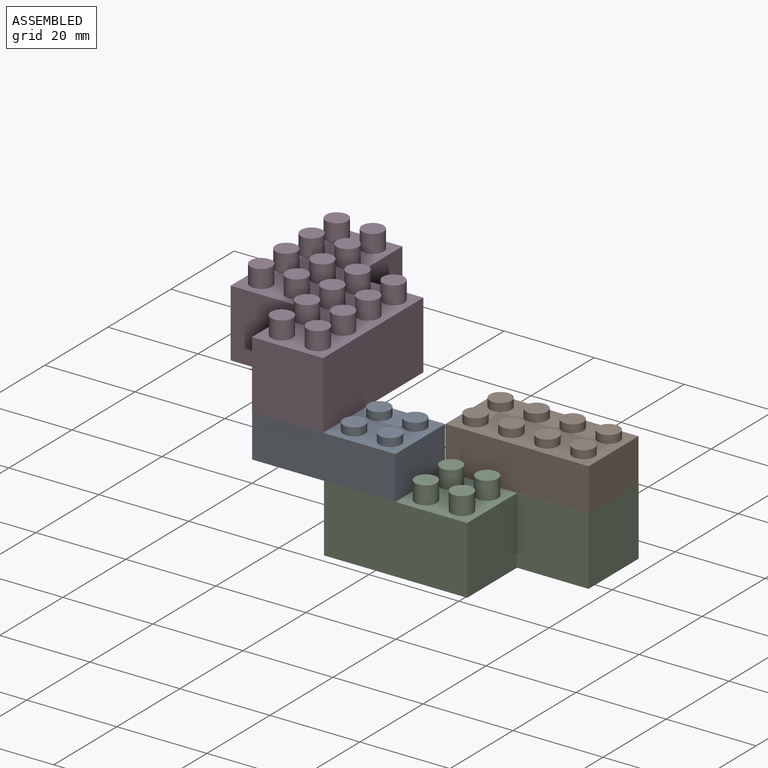
[diagram: assembled view]
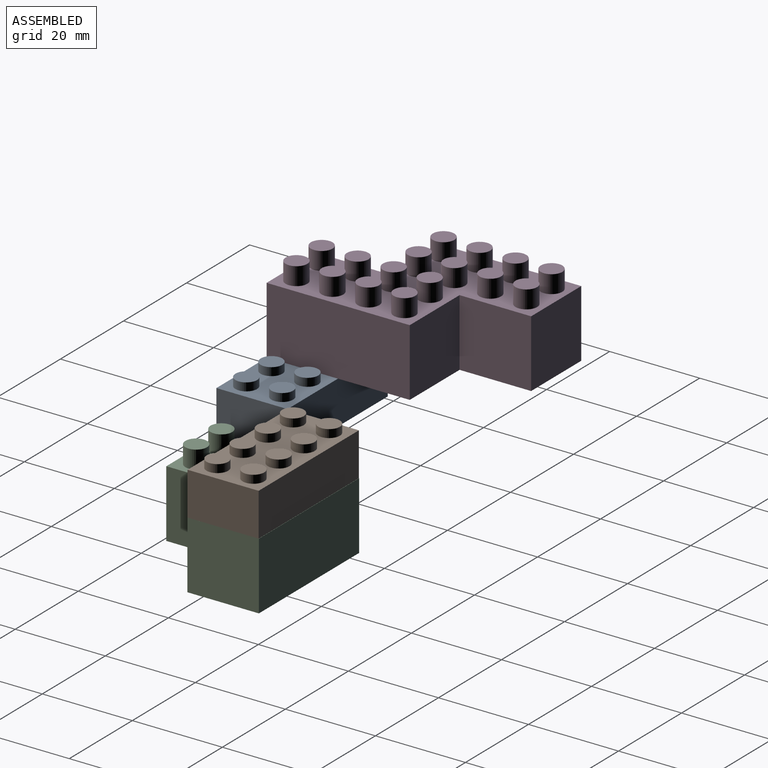
[diagram: assembled view, second angle]
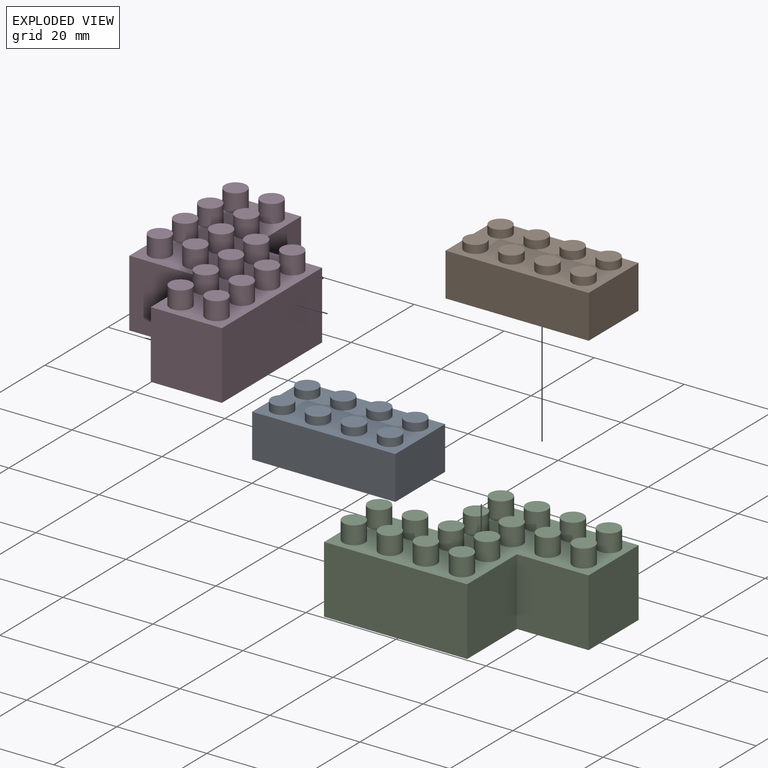
[diagram: exploded view]
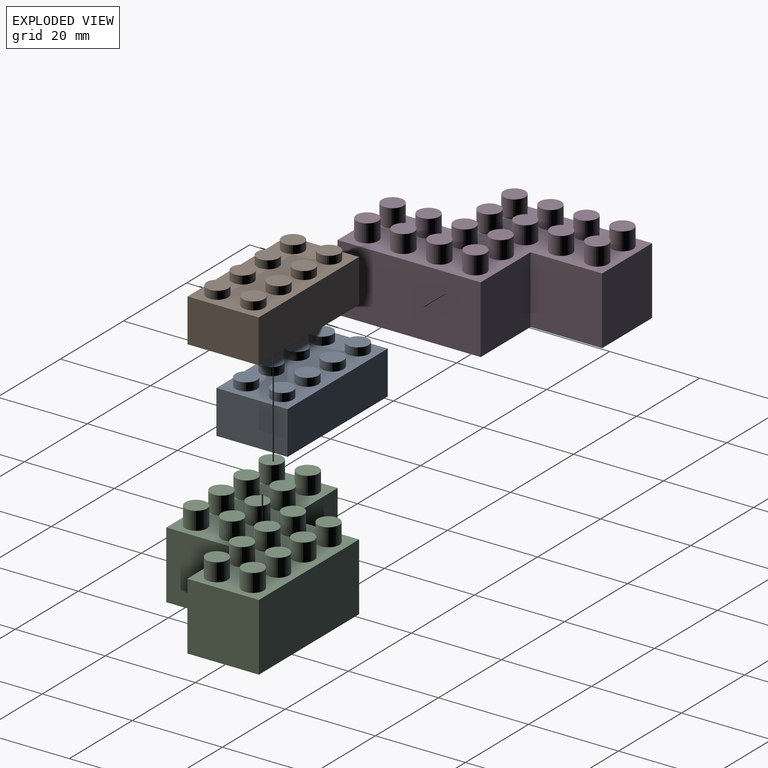
[diagram: exploded view, second angle]
ASSEMBLY  parts=4 mates=3
PART A: 87 faces, bbox 31.8x15.8x11.4 mm
  f0: plane 31.8x15.8mm, normal (0,0,-1), area 110.6mm2, adj f1,f2,f3,f4,f22,f23,f24,f25
  f1: plane 31.8x9.6mm, normal (0,1,0), area 305.3mm2, adj f0,f2,f4,f5
  f2: plane 15.8x9.6mm, normal (-1,0,0), area 151.7mm2, adj f0,f1,f3,f5
  f3: plane 31.8x9.6mm, normal (0,-1,0), area 305.3mm2, adj f0,f2,f4,f5
  f4: plane 15.8x9.6mm, normal (1,0,0), area 151.7mm2, adj f0,f1,f3,f5
  f5: plane 31.8x15.8mm, normal (0,0,1), area 357.7mm2, adj f1,f2,f3,f4,f6,f8,f10,f12
  f6: cylinder r=2.4mm len=4.8mm, axis (0,0,-1), area 27.1mm2, adj f5,f7
  f7: plane 4.8x4.8mm, normal (0,0,1), area 18.1mm2, adj f6
  f8: cylinder r=2.4mm len=4.8mm, axis (0,0,-1), area 27.1mm2, adj f5,f9
  f9: plane 4.8x4.8mm, normal (0,0,1), area 18.1mm2, adj f8
  f10: cylinder r=2.4mm len=4.8mm, axis (0,0,-1), area 27.1mm2, adj f5,f11
  f11: plane 4.8x4.8mm, normal (0,0,1), area 18.1mm2, adj f10
  f12: cylinder r=2.4mm len=4.8mm, axis (0,0,-1), area 27.1mm2, adj f5,f13
  f13: plane 4.8x4.8mm, normal (0,0,1), area 18.1mm2, adj f12
  f14: cylinder r=2.4mm len=4.8mm, axis (0,0,-1), area 27.1mm2, adj f5,f15
  f15: plane 4.8x4.8mm, normal (0,0,1), area 18.1mm2, adj f14
  f16: cylinder r=2.4mm len=4.8mm, axis (0,0,-1), area 27.1mm2, adj f5,f17
  f17: plane 4.8x4.8mm, normal (0,0,1), area 18.1mm2, adj f16
  f18: cylinder r=2.4mm len=4.8mm, axis (0,0,-1), area 27.1mm2, adj f5,f19
  f19: plane 4.8x4.8mm, normal (0,0,1), area 18.1mm2, adj f18
  f20: cylinder r=2.4mm len=4.8mm, axis (0,0,-1), area 27.1mm2, adj f5,f21
  f21: plane 4.8x4.8mm, normal (0,0,1), area 18.1mm2, adj f20
  f22: plane 8.2x0.3mm, normal (0,-1,0), area 2.5mm2, adj f0,f23,f75,f77
  f23: plane 8.2x2.4mm, normal (-1,0,0), area 19.7mm2, adj f0,f22,f24,f77
  f24: plane 8.2x2.4mm, normal (0,1,0), area 19.7mm2, adj f0,f23,f25,f77
  f25: plane 8.2x0.3mm, normal (1,0,0), area 2.5mm2, adj f0,f24,f26,f77
  f26: plane 8.2x0.6mm, normal (0,1,0), area 4.9mm2, adj f0,f25,f27,f77
  f27: plane 8.2x0.3mm, normal (-1,0,0), area 2.5mm2, adj f0,f26,f28,f77
  f28: plane 8.2x7.4mm, normal (0,1,0), area 60.7mm2, adj f0,f27,f29,f77
  f29: plane 8.2x0.3mm, normal (1,0,0), area 2.5mm2, adj f0,f28,f30,f77
  f30: plane 8.2x0.6mm, normal (0,1,0), area 4.9mm2, adj f0,f29,f31,f77
  f31: plane 8.2x0.3mm, normal (-1,0,0), area 2.5mm2, adj f0,f30,f32,f77
  f32: plane 8.2x7.4mm, normal (0,1,0), area 60.7mm2, adj f0,f31,f33,f77
  f33: plane 8.2x0.3mm, normal (1,0,0), area 2.5mm2, adj f0,f32,f34,f77
  f34: plane 8.2x0.6mm, normal (0,1,0), area 4.9mm2, adj f0,f33,f35,f77
  f35: plane 8.2x0.3mm, normal (-1,0,0), area 2.5mm2, adj f0,f34,f36,f77
  f36: plane 8.2x7.4mm, normal (0,1,0), area 60.7mm2, adj f0,f35,f37,f77
  f37: plane 8.2x0.3mm, normal (1,0,0), area 2.5mm2, adj f0,f36,f38,f77
  f38: plane 8.2x0.6mm, normal (0,1,0), area 4.9mm2, adj f0,f37,f39,f77
  f39: plane 8.2x0.3mm, normal (-1,0,0), area 2.5mm2, adj f0,f38,f40,f77
  f40: plane 8.2x2.4mm, normal (0,1,0), area 19.7mm2, adj f0,f39,f41,f77
  f41: plane 8.2x2.4mm, normal (1,0,0), area 19.7mm2, adj f0,f40,f42,f77
  f42: plane 8.2x0.3mm, normal (0,-1,0), area 2.5mm2, adj f0,f41,f43,f77
  f43: plane 8.2x0.6mm, normal (1,0,0), area 4.9mm2, adj f0,f42,f44,f77
  f44: plane 8.2x0.3mm, normal (0,1,0), area 2.5mm2, adj f0,f43,f45,f77
  f45: plane 8.2x7.4mm, normal (1,0,0), area 60.7mm2, adj f0,f44,f46,f77
  f46: plane 8.2x0.3mm, normal (0,-1,0), area 2.5mm2, adj f0,f45,f47,f77
  f47: plane 8.2x0.6mm, normal (1,0,0), area 4.9mm2, adj f0,f46,f48,f77
  f48: plane 8.2x0.3mm, normal (0,1,0), area 2.5mm2, adj f0,f47,f49,f77
  f49: plane 8.2x2.4mm, normal (1,0,0), area 19.7mm2, adj f0,f48,f50,f77
  f50: plane 8.2x2.4mm, normal (0,-1,0), area 19.7mm2, adj f0,f49,f51,f77
  f51: plane 8.2x0.3mm, normal (-1,0,0), area 2.5mm2, adj f0,f50,f52,f77
  f52: plane 8.2x0.6mm, normal (0,-1,0), area 4.9mm2, adj f0,f51,f53,f77
  f53: plane 8.2x0.3mm, normal (1,0,0), area 2.5mm2, adj f0,f52,f54,f77
  f54: plane 8.2x7.4mm, normal (0,-1,0), area 60.7mm2, adj f0,f53,f55,f77
  f55: plane 8.2x0.3mm, normal (-1,0,0), area 2.5mm2, adj f0,f54,f56,f77
  f56: plane 8.2x0.6mm, normal (0,-1,0), area 4.9mm2, adj f0,f55,f57,f77
  f57: plane 8.2x0.3mm, normal (1,0,0), area 2.5mm2, adj f0,f56,f58,f77
  f58: plane 8.2x7.4mm, normal (0,-1,0), area 60.7mm2, adj f0,f57,f59,f77
  f59: plane 8.2x0.3mm, normal (-1,0,0), area 2.5mm2, adj f0,f58,f60,f77
  f60: plane 8.2x0.6mm, normal (0,-1,0), area 4.9mm2, adj f0,f59,f61,f77
  f61: plane 8.2x0.3mm, normal (1,0,0), area 2.5mm2, adj f0,f60,f62,f77
  f62: plane 8.2x7.4mm, normal (0,-1,0), area 60.7mm2, adj f0,f61,f63,f77
  f63: plane 8.2x0.3mm, normal (-1,0,0), area 2.5mm2, adj f0,f62,f64,f77
  f64: plane 8.2x0.6mm, normal (0,-1,0), area 4.9mm2, adj f0,f63,f65,f77
  f65: plane 8.2x0.3mm, normal (1,0,0), area 2.5mm2, adj f0,f64,f66,f77
  f66: plane 8.2x2.4mm, normal (0,-1,0), area 19.7mm2, adj f0,f65,f67,f77
  f67: plane 8.2x2.4mm, normal (-1,0,0), area 19.7mm2, adj f0,f66,f68,f77
  f68: plane 8.2x0.3mm, normal (0,1,0), area 2.5mm2, adj f0,f67,f69,f77
  f69: plane 8.2x0.6mm, normal (-1,0,0), area 4.9mm2, adj f0,f68,f70,f77
  f70: plane 8.2x0.3mm, normal (0,-1,0), area 2.5mm2, adj f0,f69,f71,f77
  f71: plane 8.2x7.4mm, normal (-1,0,0), area 60.7mm2, adj f0,f70,f72,f77
  f72: plane 8.2x0.3mm, normal (0,1,0), area 2.5mm2, adj f0,f71,f75,f77
  f73: cylinder r=3.25mm len=8.2mm, axis (0,0,-1), area 167.4mm2, adj f77,f79
  f74: cylinder r=3.25mm len=8.2mm, axis (0,0,-1), area 167.4mm2, adj f77,f78
  f75: plane 8.2x0.6mm, normal (-1,0,0), area 4.9mm2, adj f0,f22,f72,f77
  f76: cylinder r=3.25mm len=8.2mm, axis (0,0,-1), area 167.4mm2, adj f77,f84
  f77: plane 29.4x13.4mm, normal (0,0,-1), area 292.3mm2, adj f22,f23,f24,f25,f26,f27,f28,f29
  f78: plane 6.5x6.5mm, normal (0,0,-1), area 15.1mm2, adj f74,f82
  f79: plane 6.5x6.5mm, normal (0,0,-1), area 15.1mm2, adj f73,f80
  f80: cylinder r=2.4mm len=8.2mm, axis (0,0,-1), area 123.7mm2, adj f79,f81
  f81: plane 4.8x4.8mm, normal (0,0,-1), area 18.1mm2, adj f80
  f82: cylinder r=2.4mm len=8.2mm, axis (0,0,-1), area 123.7mm2, adj f78,f83
  f83: plane 4.8x4.8mm, normal (0,0,-1), area 18.1mm2, adj f82
  f84: plane 6.5x6.5mm, normal (0,0,-1), area 15.1mm2, adj f76,f85
  f85: cylinder r=2.4mm len=8.2mm, axis (0,0,-1), area 123.7mm2, adj f84,f86
  f86: plane 4.8x4.8mm, normal (0,0,-1), area 18.1mm2, adj f85
PART B: same geometry as A
PART C: 172 faces, bbox 47.7x31.7x19 mm
  f0: plane 47.7x31.7mm, normal (0,0,-1), area 221.5mm2, adj f1,f2,f3,f4,f5,f6,f7,f8
  f1: plane 15.8x15mm, normal (-1,0,0), area 237mm2, adj f0,f2,f8,f9
  f2: plane 31.8x15mm, normal (0,-1,0), area 477mm2, adj f0,f1,f3,f9
  f3: plane 15.8x15mm, normal (1,0,0), area 237mm2, adj f0,f2,f4,f9
  f4: plane 15.9x15mm, normal (0,-1,0), area 238.5mm2, adj f0,f3,f5,f9
  f5: plane 15.9x15mm, normal (1,0,0), area 238.5mm2, adj f0,f4,f6,f9
  f6: plane 31.8x15mm, normal (0,1,0), area 477mm2, adj f0,f5,f7,f9
  f7: plane 15.9x15mm, normal (-1,0,0), area 238.5mm2, adj f0,f6,f8,f9
  f8: plane 15.9x15mm, normal (0,1,0), area 238.5mm2, adj f0,f1,f7,f9
  f9: plane 47.7x31.7mm, normal (0,0,1), area 718.5mm2, adj f1,f2,f3,f4,f5,f6,f7,f8
  f10: cylinder r=2.4mm len=4.8mm, axis (0,0,-1), area 60.3mm2, adj f9,f11
  f11: plane 4.8x4.8mm, normal (0,0,1), area 18.1mm2, adj f10
  f12: cylinder r=2.4mm len=4.8mm, axis (0,0,-1), area 60.3mm2, adj f9,f13
  f13: plane 4.8x4.8mm, normal (0,0,1), area 18.1mm2, adj f12
  f14: cylinder r=2.4mm len=4.8mm, axis (0,0,-1), area 60.3mm2, adj f9,f15
  f15: plane 4.8x4.8mm, normal (0,0,1), area 18.1mm2, adj f14
  f16: cylinder r=2.4mm len=4.8mm, axis (0,0,-1), area 60.3mm2, adj f9,f17
  f17: plane 4.8x4.8mm, normal (0,0,1), area 18.1mm2, adj f16
  f18: cylinder r=2.4mm len=4.8mm, axis (0,0,-1), area 60.3mm2, adj f9,f19
  f19: plane 4.8x4.8mm, normal (0,0,1), area 18.1mm2, adj f18
  f20: cylinder r=2.4mm len=4.8mm, axis (0,0,-1), area 60.3mm2, adj f9,f21
  f21: plane 4.8x4.8mm, normal (0,0,1), area 18.1mm2, adj f20
  f22: cylinder r=2.4mm len=4.8mm, axis (0,0,-1), area 60.3mm2, adj f9,f23
  f23: plane 4.8x4.8mm, normal (0,0,1), area 18.1mm2, adj f22
  f24: cylinder r=2.4mm len=4.8mm, axis (0,0,-1), area 60.3mm2, adj f9,f25
  f25: plane 4.8x4.8mm, normal (0,0,1), area 18.1mm2, adj f24
  f26: cylinder r=2.4mm len=4.8mm, axis (0,0,-1), area 60.3mm2, adj f9,f27
  f27: plane 4.8x4.8mm, normal (0,0,1), area 18.1mm2, adj f26
  f28: cylinder r=2.4mm len=4.8mm, axis (0,0,-1), area 60.3mm2, adj f9,f29
  f29: plane 4.8x4.8mm, normal (0,0,1), area 18.1mm2, adj f28
  f30: cylinder r=2.4mm len=4.8mm, axis (0,0,-1), area 60.3mm2, adj f9,f31
  f31: plane 4.8x4.8mm, normal (0,0,1), area 18.1mm2, adj f30
  f32: cylinder r=2.4mm len=4.8mm, axis (0,0,-1), area 60.3mm2, adj f9,f33
  f33: plane 4.8x4.8mm, normal (0,0,1), area 18.1mm2, adj f32
  f34: cylinder r=2.4mm len=4.8mm, axis (0,0,-1), area 60.3mm2, adj f9,f35
  f35: plane 4.8x4.8mm, normal (0,0,1), area 18.1mm2, adj f34
  f36: cylinder r=2.4mm len=4.8mm, axis (0,0,-1), area 60.3mm2, adj f9,f37
  f37: plane 4.8x4.8mm, normal (0,0,1), area 18.1mm2, adj f36
  f38: cylinder r=2.4mm len=4.8mm, axis (0,0,-1), area 60.3mm2, adj f9,f39
  f39: plane 4.8x4.8mm, normal (0,0,1), area 18.1mm2, adj f38
  f40: cylinder r=2.4mm len=4.8mm, axis (0,0,-1), area 60.3mm2, adj f9,f41
  f41: plane 4.8x4.8mm, normal (0,0,1), area 18.1mm2, adj f40
  f42: plane 8.2x2.4mm, normal (0,1,0), area 19.7mm2, adj f0,f43,f95,f97
  f43: plane 8.2x2.4mm, normal (1,0,0), area 19.7mm2, adj f0,f42,f44,f97
  f44: plane 8.2x0.3mm, normal (0,-1,0), area 2.5mm2, adj f0,f43,f45,f97
  f45: plane 8.2x0.6mm, normal (1,0,0), area 4.9mm2, adj f0,f44,f46,f97
  f46: plane 8.2x0.3mm, normal (0,1,0), area 2.5mm2, adj f0,f45,f47,f97
  f47: plane 8.2x7.4mm, normal (1,0,0), area 60.7mm2, adj f0,f46,f48,f97
  f48: plane 8.2x0.3mm, normal (0,-1,0), area 2.5mm2, adj f0,f47,f49,f97
  f49: plane 8.2x0.6mm, normal (1,0,0), area 4.9mm2, adj f0,f48,f50,f97
  f50: plane 8.2x0.3mm, normal (0,1,0), area 2.5mm2, adj f0,f49,f51,f97
  f51: plane 8.2x2.4mm, normal (1,0,0), area 19.7mm2, adj f0,f50,f52,f97
  f52: plane 8.2x2.4mm, normal (0,-1,0), area 19.7mm2, adj f0,f51,f53,f97
  f53: plane 8.2x0.3mm, normal (-1,0,0), area 2.5mm2, adj f0,f52,f54,f97
  f54: plane 8.2x0.6mm, normal (0,-1,0), area 4.9mm2, adj f0,f53,f55,f97
  f55: plane 8.2x0.3mm, normal (1,0,0), area 2.5mm2, adj f0,f54,f56,f97
  f56: plane 8.2x7.4mm, normal (0,-1,0), area 60.7mm2, adj f0,f55,f57,f97
  f57: plane 8.2x0.3mm, normal (-1,0,0), area 2.5mm2, adj f0,f56,f58,f97
  f58: plane 8.2x0.6mm, normal (0,-1,0), area 4.9mm2, adj f0,f57,f59,f97
  f59: plane 8.2x0.3mm, normal (1,0,0), area 2.5mm2, adj f0,f58,f60,f97
  f60: plane 8.2x7.4mm, normal (0,-1,0), area 60.7mm2, adj f0,f59,f61,f97
  f61: plane 8.2x0.3mm, normal (-1,0,0), area 2.5mm2, adj f0,f60,f62,f97
  f62: plane 8.2x0.6mm, normal (0,-1,0), area 4.9mm2, adj f0,f61,f63,f97
  f63: plane 8.2x0.3mm, normal (1,0,0), area 2.5mm2, adj f0,f62,f64,f97
  f64: plane 8.2x7.4mm, normal (0,-1,0), area 60.7mm2, adj f0,f63,f65,f97
  f65: plane 8.2x0.3mm, normal (-1,0,0), area 2.5mm2, adj f0,f64,f66,f97
  f66: plane 8.2x0.6mm, normal (0,-1,0), area 4.9mm2, adj f0,f65,f67,f97
  f67: plane 8.2x0.3mm, normal (1,0,0), area 2.5mm2, adj f0,f66,f68,f97
  f68: plane 8.2x2.4mm, normal (0,-1,0), area 19.7mm2, adj f0,f67,f69,f97
  f69: plane 8.2x2.4mm, normal (-1,0,0), area 19.7mm2, adj f0,f68,f70,f97
  f70: plane 8.2x0.3mm, normal (0,1,0), area 2.5mm2, adj f0,f69,f71,f97
  f71: plane 8.2x0.6mm, normal (-1,0,0), area 4.9mm2, adj f0,f70,f72,f97
  f72: plane 8.2x0.3mm, normal (0,-1,0), area 2.5mm2, adj f0,f71,f73,f97
  f73: plane 8.2x7.4mm, normal (-1,0,0), area 60.7mm2, adj f0,f72,f74,f97
  f74: plane 8.2x0.3mm, normal (0,1,0), area 2.5mm2, adj f0,f73,f75,f97
  f75: plane 8.2x0.6mm, normal (-1,0,0), area 4.9mm2, adj f0,f74,f76,f97
  f76: plane 8.2x0.3mm, normal (0,-1,0), area 2.5mm2, adj f0,f75,f77,f97
  f77: plane 8.2x2.4mm, normal (-1,0,0), area 19.7mm2, adj f0,f76,f78,f97
  f78: plane 8.2x2.4mm, normal (0,1,0), area 19.7mm2, adj f0,f77,f79,f97
  f79: plane 8.2x0.3mm, normal (1,0,0), area 2.5mm2, adj f0,f78,f80,f97
  f80: plane 8.2x0.6mm, normal (0,1,0), area 4.9mm2, adj f0,f79,f81,f97
  f81: plane 8.2x0.3mm, normal (-1,0,0), area 2.5mm2, adj f0,f80,f82,f97
  f82: plane 8.2x7.4mm, normal (0,1,0), area 60.7mm2, adj f0,f81,f83,f97
  f83: plane 8.2x0.3mm, normal (1,0,0), area 2.5mm2, adj f0,f82,f84,f97
  f84: plane 8.2x0.6mm, normal (0,1,0), area 4.9mm2, adj f0,f83,f85,f97
  f85: plane 8.2x0.3mm, normal (-1,0,0), area 2.5mm2, adj f0,f84,f86,f97
  f86: plane 8.2x7.4mm, normal (0,1,0), area 60.7mm2, adj f0,f85,f87,f97
  f87: plane 8.2x0.3mm, normal (1,0,0), area 2.5mm2, adj f0,f86,f88,f97
  f88: plane 8.2x0.6mm, normal (0,1,0), area 4.9mm2, adj f0,f87,f89,f97
  f89: plane 8.2x0.3mm, normal (-1,0,0), area 2.5mm2, adj f0,f88,f90,f97
  f90: plane 8.2x7.4mm, normal (0,1,0), area 60.7mm2, adj f0,f89,f91,f97
  f91: plane 8.2x0.3mm, normal (1,0,0), area 2.5mm2, adj f0,f90,f92,f97
  f92: plane 8.2x0.6mm, normal (0,1,0), area 4.9mm2, adj f0,f91,f95,f97
  f93: cylinder r=3.25mm len=8.2mm, axis (0,0,-1), area 167.4mm2, adj f97,f99
  f94: cylinder r=3.25mm len=8.2mm, axis (0,0,-1), area 167.4mm2, adj f97,f98
  f95: plane 8.2x0.3mm, normal (-1,0,0), area 2.5mm2, adj f0,f42,f92,f97
  f96: cylinder r=3.25mm len=8.2mm, axis (0,0,-1), area 167.4mm2, adj f97,f160
  f97: plane 29.4x13.4mm, normal (0,0,-1), area 292.3mm2, adj f42,f43,f44,f45,f46,f47,f48,f49
  f98: plane 6.5x6.5mm, normal (0,0,-1), area 15.1mm2, adj f94,f102
  f99: plane 6.5x6.5mm, normal (0,0,-1), area 15.1mm2, adj f93,f100
  f100: cylinder r=2.4mm len=8.2mm, axis (0,0,-1), area 123.7mm2, adj f99,f101
  f101: plane 4.8x4.8mm, normal (0,0,-1), area 18.1mm2, adj f100
  f102: cylinder r=2.4mm len=8.2mm, axis (0,0,-1), area 123.7mm2, adj f98,f103
  f103: plane 4.8x4.8mm, normal (0,0,-1), area 18.1mm2, adj f102
  f104: plane 8.2x7.4mm, normal (0,1,0), area 60.7mm2, adj f0,f105,f157,f159
  f105: plane 8.2x0.3mm, normal (1,0,0), area 2.5mm2, adj f0,f104,f106,f159
  f106: plane 8.2x0.6mm, normal (0,1,0), area 4.9mm2, adj f0,f105,f107,f159
  f107: plane 8.2x0.3mm, normal (-1,0,0), area 2.5mm2, adj f0,f106,f108,f159
  f108: plane 8.2x2.4mm, normal (0,1,0), area 19.7mm2, adj f0,f107,f109,f159
  f109: plane 8.2x2.4mm, normal (1,0,0), area 19.7mm2, adj f0,f108,f110,f159
  f110: plane 8.2x0.3mm, normal (0,-1,0), area 2.5mm2, adj f0,f109,f111,f159
  f111: plane 8.2x0.6mm, normal (1,0,0), area 4.9mm2, adj f0,f110,f112,f159
  f112: plane 8.2x0.3mm, normal (0,1,0), area 2.5mm2, adj f0,f111,f113,f159
  f113: plane 8.2x7.4mm, normal (1,0,0), area 60.7mm2, adj f0,f112,f114,f159
  f114: plane 8.2x0.3mm, normal (0,-1,0), area 2.5mm2, adj f0,f113,f115,f159
  f115: plane 8.2x0.6mm, normal (1,0,0), area 4.9mm2, adj f0,f114,f116,f159
  f116: plane 8.2x0.3mm, normal (0,1,0), area 2.5mm2, adj f0,f115,f117,f159
  f117: plane 8.2x2.5mm, normal (1,0,0), area 20.5mm2, adj f0,f116,f118,f159
  f118: plane 8.2x2.4mm, normal (0,-1,0), area 19.7mm2, adj f0,f117,f119,f159
  f119: plane 8.2x0.3mm, normal (-1,0,0), area 2.5mm2, adj f0,f118,f120,f159
  f120: plane 8.2x0.6mm, normal (0,-1,0), area 4.9mm2, adj f0,f119,f121,f159
  f121: plane 8.2x0.3mm, normal (1,0,0), area 2.5mm2, adj f0,f120,f122,f159
  f122: plane 8.2x7.4mm, normal (0,-1,0), area 60.7mm2, adj f0,f121,f123,f159
  f123: plane 8.2x0.3mm, normal (-1,0,0), area 2.5mm2, adj f0,f122,f124,f159
  f124: plane 8.2x0.6mm, normal (0,-1,0), area 4.9mm2, adj f0,f123,f125,f159
  f125: plane 8.2x0.3mm, normal (1,0,0), area 2.5mm2, adj f0,f124,f126,f159
  f126: plane 8.2x7.4mm, normal (0,-1,0), area 60.7mm2, adj f0,f125,f127,f159
  f127: plane 8.2x0.3mm, normal (-1,0,0), area 2.5mm2, adj f0,f126,f128,f159
  f128: plane 8.2x0.6mm, normal (0,-1,0), area 4.9mm2, adj f0,f127,f129,f159
  f129: plane 8.2x0.3mm, normal (1,0,0), area 2.5mm2, adj f0,f128,f130,f159
  f130: plane 8.2x7.4mm, normal (0,-1,0), area 60.7mm2, adj f0,f129,f131,f159
  f131: plane 8.2x0.3mm, normal (-1,0,0), area 2.5mm2, adj f0,f130,f132,f159
  f132: plane 8.2x0.6mm, normal (0,-1,0), area 4.9mm2, adj f0,f131,f133,f159
  f133: plane 8.2x0.3mm, normal (1,0,0), area 2.5mm2, adj f0,f132,f134,f159
  f134: plane 8.2x2.4mm, normal (0,-1,0), area 19.7mm2, adj f0,f133,f135,f159
  f135: plane 8.2x2.5mm, normal (-1,0,0), area 20.5mm2, adj f0,f134,f136,f159
  f136: plane 8.2x0.3mm, normal (0,1,0), area 2.5mm2, adj f0,f135,f137,f159
  f137: plane 8.2x0.6mm, normal (-1,0,0), area 4.9mm2, adj f0,f136,f138,f159
  f138: plane 8.2x0.3mm, normal (0,-1,0), area 2.5mm2, adj f0,f137,f139,f159
  f139: plane 8.2x7.4mm, normal (-1,0,0), area 60.7mm2, adj f0,f138,f140,f159
  f140: plane 8.2x0.3mm, normal (0,1,0), area 2.5mm2, adj f0,f139,f141,f159
  f141: plane 8.2x0.6mm, normal (-1,0,0), area 4.9mm2, adj f0,f140,f142,f159
  f142: plane 8.2x0.3mm, normal (0,-1,0), area 2.5mm2, adj f0,f141,f143,f159
  f143: plane 8.2x2.4mm, normal (-1,0,0), area 19.7mm2, adj f0,f142,f144,f159
  f144: plane 8.2x2.4mm, normal (0,1,0), area 19.7mm2, adj f0,f143,f145,f159
  f145: plane 8.2x0.3mm, normal (1,0,0), area 2.5mm2, adj f0,f144,f146,f159
  f146: plane 8.2x0.6mm, normal (0,1,0), area 4.9mm2, adj f0,f145,f147,f159
  f147: plane 8.2x0.3mm, normal (-1,0,0), area 2.5mm2, adj f0,f146,f148,f159
  f148: plane 8.2x7.4mm, normal (0,1,0), area 60.7mm2, adj f0,f147,f149,f159
  f149: plane 8.2x0.3mm, normal (1,0,0), area 2.5mm2, adj f0,f148,f150,f159
  f150: plane 8.2x0.6mm, normal (0,1,0), area 4.9mm2, adj f0,f149,f151,f159
  f151: plane 8.2x0.3mm, normal (-1,0,0), area 2.5mm2, adj f0,f150,f152,f159
  f152: plane 8.2x7.4mm, normal (0,1,0), area 60.7mm2, adj f0,f151,f153,f159
  f153: plane 8.2x0.3mm, normal (1,0,0), area 2.5mm2, adj f0,f152,f154,f159
  f154: plane 8.2x0.6mm, normal (0,1,0), area 4.9mm2, adj f0,f153,f157,f159
  f155: cylinder r=3.25mm len=8.2mm, axis (0,0,-1), area 167.4mm2, adj f159,f164
  f156: cylinder r=3.25mm len=8.2mm, axis (0,0,-1), area 167.4mm2, adj f159,f167
  f157: plane 8.2x0.3mm, normal (-1,0,0), area 2.5mm2, adj f0,f104,f154,f159
  f158: cylinder r=3.25mm len=8.2mm, axis (0,0,-1), area 167.4mm2, adj f159,f161
  f159: plane 29.4x13.5mm, normal (0,0,-1), area 295.2mm2, adj f104,f105,f106,f107,f108,f109,f110,f111
  f160: plane 6.5x6.5mm, normal (0,0,-1), area 15.1mm2, adj f96,f170
  f161: plane 6.5x6.5mm, normal (0,0,-1), area 15.1mm2, adj f158,f162
  f162: cylinder r=2.4mm len=8.2mm, axis (0,0,-1), area 123.7mm2, adj f161,f163
  f163: plane 4.8x4.8mm, normal (0,0,-1), area 18.1mm2, adj f162
  f164: plane 6.5x6.5mm, normal (0,0,-1), area 15.1mm2, adj f155,f165
  f165: cylinder r=2.4mm len=8.2mm, axis (0,0,-1), area 123.7mm2, adj f164,f166
  f166: plane 4.8x4.8mm, normal (0,0,-1), area 18.1mm2, adj f165
  f167: plane 6.5x6.5mm, normal (0,0,-1), area 15.1mm2, adj f156,f168
  f168: cylinder r=2.4mm len=8.2mm, axis (0,0,-1), area 123.7mm2, adj f167,f169
  f169: plane 4.8x4.8mm, normal (0,0,-1), area 18.1mm2, adj f168
  f170: cylinder r=2.4mm len=8.2mm, axis (0,0,-1), area 123.7mm2, adj f160,f171
  f171: plane 4.8x4.8mm, normal (0,0,-1), area 18.1mm2, adj f170
PART D: same geometry as C
PLACE A t=(-34.43,-14.4,4.1)mm
PLACE B t=(-2.59,1.49,4.1)mm
PLACE C t=(-18.49,-14.36,-10.9)mm
PLACE D rot(axis=(0,0,1),90deg) t=(-42.43,-6.45,13.7)mm
MATE fastened C.f9 <-> B.f0  axis (0,0,1) through (13.31,1.49,4.1)mm
MATE fastened A.f0 <-> C.f9  axis (0,0,-1) through (-18.53,-14.4,4.1)mm
MATE fastened D.f0 <-> A.f5  axis (0,0,-1) through (-50.33,-14.4,13.7)mm
